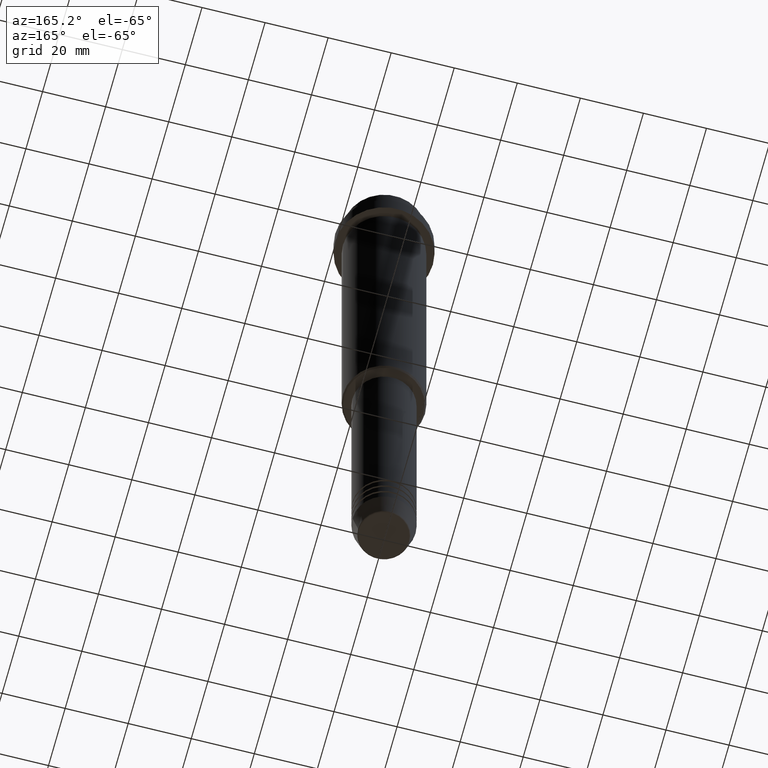
[diagram: clean part render]
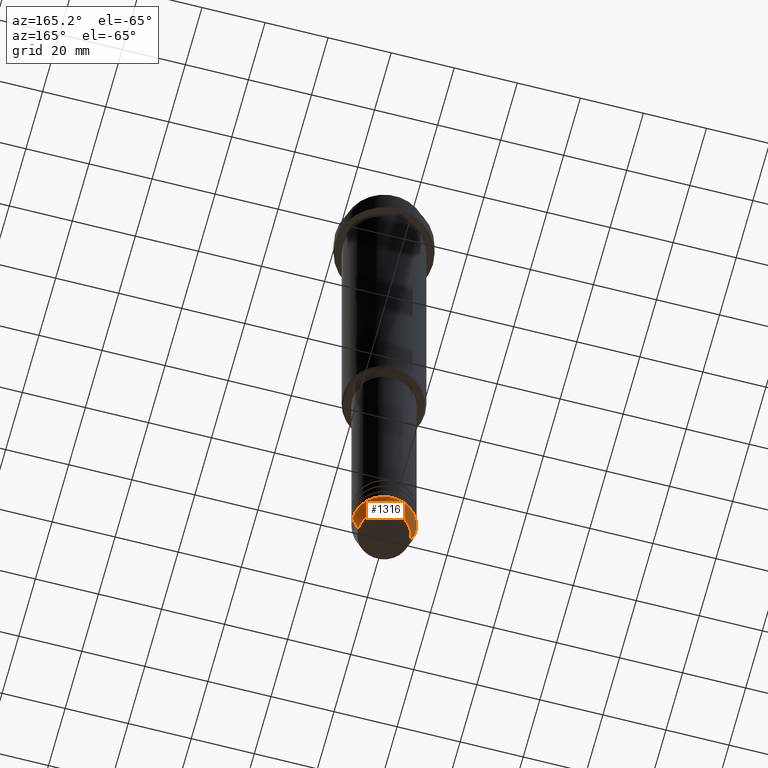
[diagram: same view with one face highlighted and labeled with its STEP entity id]
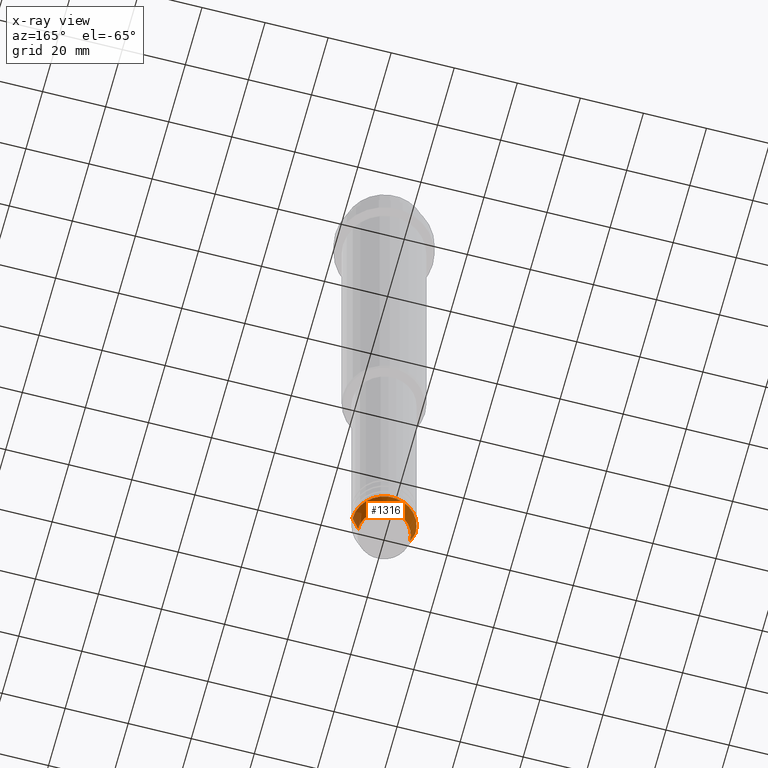
[diagram: x-ray of the same camera — body ghosted, the highlighted face saturated]
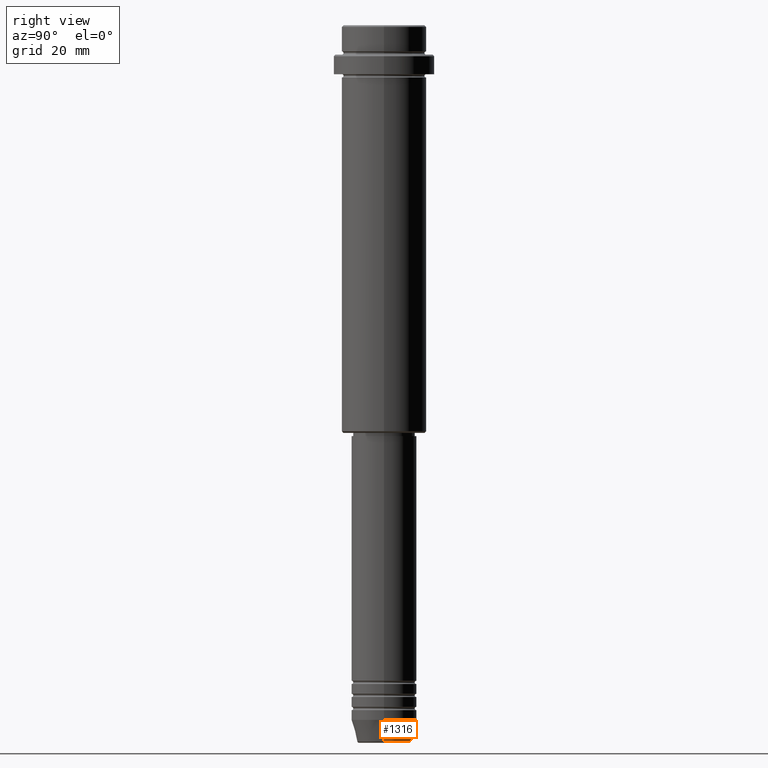
[diagram: same view with one face highlighted and labeled with its STEP entity id]
A machine part, auxiliary view. The second image highlights one B-rep face of the part: STEP entity #1316.
The next image is the same camera in x-ray: the body ghosted, the highlighted face saturated — about 0% of this face is hidden behind the body in this view.
A second angle (right view) of the same face is appended — the face is thin or edge-on in the first view.
In plain terms, the highlighted conical surface has half-angle 15 deg.
Its self-contained STEP definition (entity closure, byte-faithful):
#63 = VERTEX_POINT ( 'NONE', #1264 ) ;
#223 = VERTEX_POINT ( 'NONE', #234 ) ;
#234 = CARTESIAN_POINT ( 'NONE',  ( -10.00000000000000000, 1.224646799147353256E-15, -213.0000000000000284 ) ) ;
#253 = DIRECTION ( 'NONE',  ( -0.000000000000000000, -0.000000000000000000, 1.000000000000000000 ) ) ;
#276 = CARTESIAN_POINT ( 'NONE',  ( 10.00000000000000000, 0.000000000000000000, -213.0000000000000284 ) ) ;
#364 = VECTOR ( 'NONE', #1158, 1000.000000000000114 ) ;
#372 = ORIENTED_EDGE ( 'NONE', *, *, #1071, .T. ) ;
#418 = CARTESIAN_POINT ( 'NONE',  ( 10.00000000000000000, 0.000000000000000000, -213.0000000000000284 ) ) ;
#423 = DIRECTION ( 'NONE',  ( -0.000000000000000000, -0.000000000000000000, 1.000000000000000000 ) ) ;
#428 = EDGE_CURVE ( 'NONE', #63, #488, #854, .T. ) ;
#472 = DIRECTION ( 'NONE',  ( 1.000000000000000000, 0.000000000000000000, 0.000000000000000000 ) ) ;
#488 = VERTEX_POINT ( 'NONE', #497 ) ;
#497 = CARTESIAN_POINT ( 'NONE',  ( -8.223655072137193045, 1.115877042642912251E-15, -219.6294095225512990 ) ) ;
#499 = FACE_OUTER_BOUND ( 'NONE', #776, .T. ) ;
#506 = AXIS2_PLACEMENT_3D ( 'NONE', #839, #1042, #1265 ) ;
#524 = ORIENTED_EDGE ( 'NONE', *, *, #611, .F. ) ;
#529 = CIRCLE ( 'NONE', #716, 10.00000000000000000 ) ;
#548 = ORIENTED_EDGE ( 'NONE', *, *, #783, .F. ) ;
#611 = EDGE_CURVE ( 'NONE', #63, #1320, #1179, .T. ) ;
#716 = AXIS2_PLACEMENT_3D ( 'NONE', #1114, #423, #769 ) ;
#727 = CARTESIAN_POINT ( 'NONE',  ( -10.00000000000000000, 1.224646799147353256E-15, -213.0000000000000284 ) ) ;
#766 = VECTOR ( 'NONE', #1390, 1000.000000000000114 ) ;
#769 = DIRECTION ( 'NONE',  ( 1.000000000000000000, 0.000000000000000000, 0.000000000000000000 ) ) ;
#776 = EDGE_LOOP ( 'NONE', ( #915, #372, #548, #524 ) ) ;
#783 = EDGE_CURVE ( 'NONE', #1320, #223, #529, .T. ) ;
#835 = LINE ( 'NONE', #727, #364 ) ;
#839 = CARTESIAN_POINT ( 'NONE',  ( 0.000000000000000000, 0.000000000000000000, -213.0000000000000284 ) ) ;
#854 = CIRCLE ( 'NONE', #1356, 8.223655072137193045 ) ;
#915 = ORIENTED_EDGE ( 'NONE', *, *, #428, .T. ) ;
#1042 = DIRECTION ( 'NONE',  ( -0.000000000000000000, -0.000000000000000000, 1.000000000000000000 ) ) ;
#1071 = EDGE_CURVE ( 'NONE', #488, #223, #835, .T. ) ;
#1114 = CARTESIAN_POINT ( 'NONE',  ( 0.000000000000000000, 0.000000000000000000, -213.0000000000000284 ) ) ;
#1125 = CONICAL_SURFACE ( 'NONE', #506, 10.00000000000000000, 0.2617993877991491303 ) ;
#1158 = DIRECTION ( 'NONE',  ( -0.2588190451025205174, 3.169619151431761243E-17, 0.9659258262890684232 ) ) ;
#1179 = LINE ( 'NONE', #418, #766 ) ;
#1238 = CARTESIAN_POINT ( 'NONE',  ( 0.000000000000000000, 0.000000000000000000, -219.6294095225512990 ) ) ;
#1264 = CARTESIAN_POINT ( 'NONE',  ( 8.223655072137193045, 0.000000000000000000, -219.6294095225512990 ) ) ;
#1265 = DIRECTION ( 'NONE',  ( 1.000000000000000000, 0.000000000000000000, 0.000000000000000000 ) ) ;
#1316 = ADVANCED_FACE ( 'NONE', ( #499 ), #1125, .T. ) ;
#1320 = VERTEX_POINT ( 'NONE', #276 ) ;
#1356 = AXIS2_PLACEMENT_3D ( 'NONE', #1238, #253, #472 ) ;
#1390 = DIRECTION ( 'NONE',  ( 0.2588190451025205174, 0.000000000000000000, 0.9659258262890684232 ) ) ;